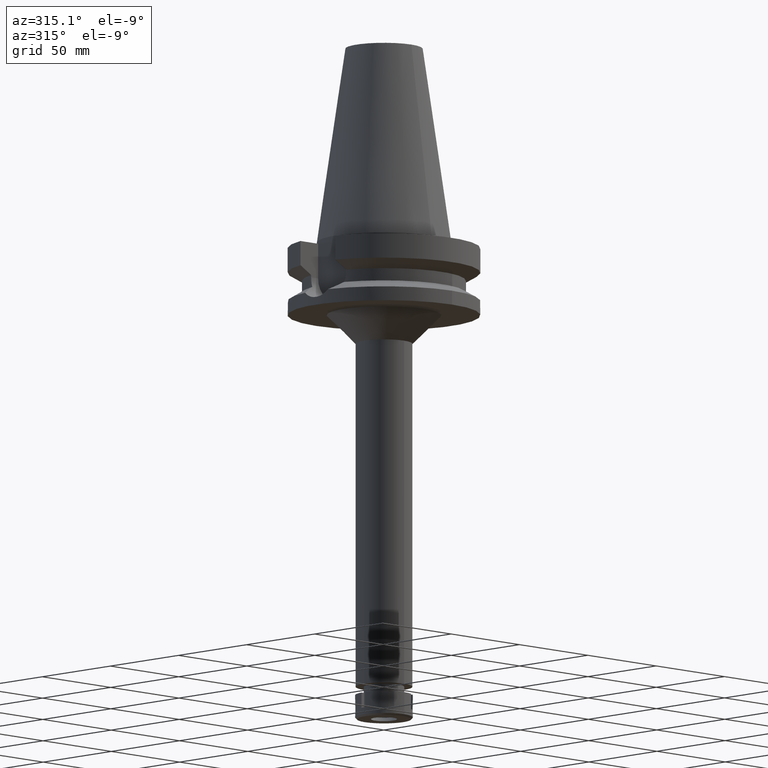
[diagram: clean part render]
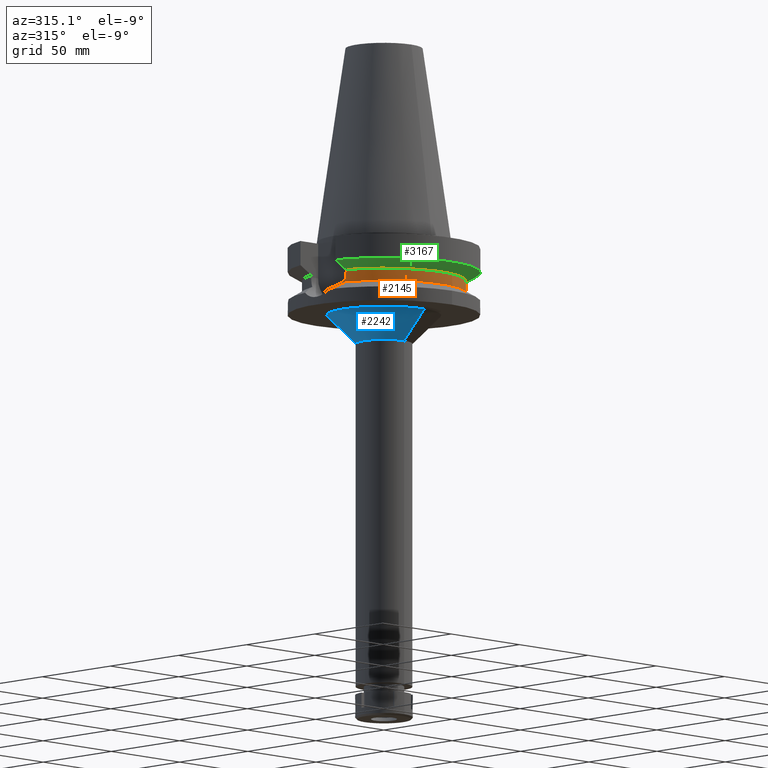
[diagram: same view with three faces highlighted in distinct colors, each labeled with its STEP entity id]
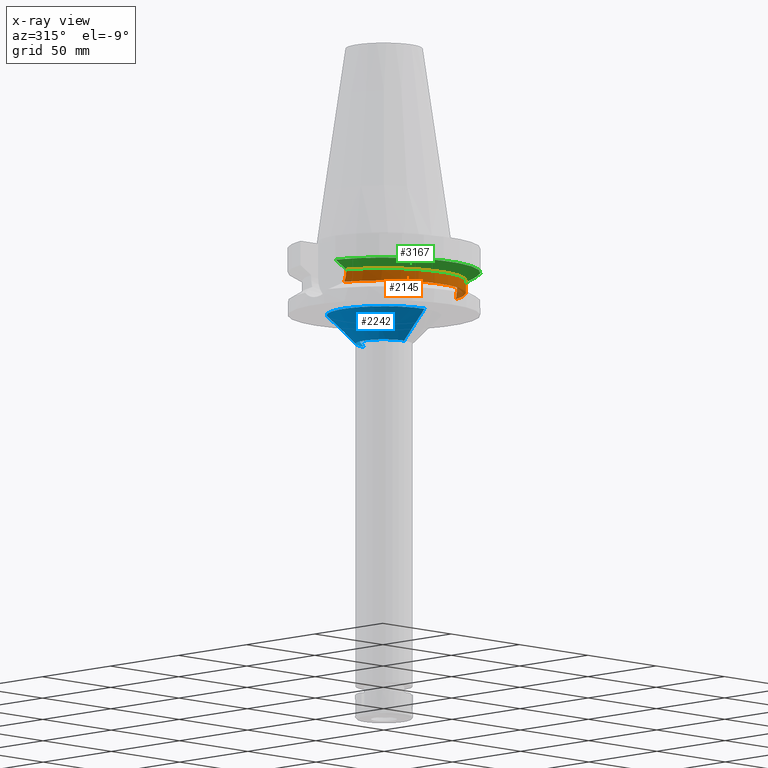
[diagram: x-ray of the same camera — body ghosted, the three highlighted faces saturated]
A machine part, auxiliary view with three faces highlighted in distinct colors.
The next image is the same camera in x-ray (body ghosted, the three faces saturated) — at least one of them is partly hidden behind the body in this view.
Their STEP definitions:

[orange] entity #2145 — the highlighted cylindrical surface (partial cylindrical patch) has radius 42.5 mm, axis along (0, 0, -1).
#53 = CARTESIAN_POINT ( 'NONE',  ( -40.51083188481999997, -12.84999999999999964, -21.14999999999999858 ) ) ;
#110 = CARTESIAN_POINT ( 'NONE',  ( -40.54024898815603706, -12.75863247753766494, -22.93144980652760978 ) ) ;
#166 = VERTEX_POINT ( 'NONE', #2362 ) ;
#270 = ORIENTED_EDGE ( 'NONE', *, *, #334, .F. ) ;
#334 = EDGE_CURVE ( 'NONE', #3294, #778, #1839, .T. ) ;
#392 = CARTESIAN_POINT ( 'NONE',  ( 40.73816480040193966, -12.11683925496016023, -25.53408892112326001 ) ) ;
#399 = CARTESIAN_POINT ( 'NONE',  ( -40.63719333504133857, -12.44501332045588171, -24.35254784870662803 ) ) ;
#444 = VECTOR ( 'NONE', #464, 1000.000000000000114 ) ;
#464 = DIRECTION ( 'NONE',  ( -9.390344966026790982E-07, -2.960396942958930431E-06, -0.9999999999951771912 ) ) ;
#612 = DIRECTION ( 'NONE',  ( 0.0000000000000000000, 0.0000000000000000000, -1.000000000000000000 ) ) ;
#629 = CARTESIAN_POINT ( 'NONE',  ( 40.85052569294000335, -11.72538061688000077, -26.40718074535000426 ) ) ;
#636 = CARTESIAN_POINT ( 'NONE',  ( -40.68244033203459509, -12.29668271514778155, -24.88704999020028552 ) ) ;
#763 = LINE ( 'NONE', #1869, #2227 ) ;
#778 = VERTEX_POINT ( 'NONE', #2733 ) ;
#784 = CARTESIAN_POINT ( 'NONE',  ( -40.85052569294000335, -11.72538061688000077, -26.40718074535000426 ) ) ;
#837 = CARTESIAN_POINT ( 'NONE',  ( -40.51083297203000200, -12.84999657244999938, -19.99284555869999735 ) ) ;
#874 = CARTESIAN_POINT ( 'NONE',  ( -40.85052569294000335, -11.72538061688000077, -26.40718074535000426 ) ) ;
#886 = CYLINDRICAL_SURFACE ( 'NONE', #2818, 42.50000000000000000 ) ;
#988 = EDGE_LOOP ( 'NONE', ( #2529, #1558, #270, #2837, #2279, #1402 ) ) ;
#1048 = AXIS2_PLACEMENT_3D ( 'NONE', #1614, #3334, #2490 ) ;
#1139 = CARTESIAN_POINT ( 'NONE',  ( -40.60613092892674558, -12.54580291205682840, -23.92957783935415961 ) ) ;
#1150 = CARTESIAN_POINT ( 'NONE',  ( 40.51818676736714053, -12.82722303781356032, -22.03685146693273822 ) ) ;
#1157 = CARTESIAN_POINT ( 'NONE',  ( -40.79434489636125960, -11.92111115639619534, -25.97063211114206638 ) ) ;
#1197 = CARTESIAN_POINT ( 'NONE',  ( -40.51083188481999997, -12.84999999999998543, -22.03306381036157902 ) ) ;
#1224 = CARTESIAN_POINT ( 'NONE',  ( 40.58662165106743913, -12.60879295188107818, -23.62921742826470606 ) ) ;
#1402 = ORIENTED_EDGE ( 'NONE', *, *, #2905, .F. ) ;
#1423 = CARTESIAN_POINT ( 'NONE',  ( 40.57495726702782690, -12.64634697063399749, -23.43364566692950390 ) ) ;
#1442 = CARTESIAN_POINT ( 'NONE',  ( 40.51083188482000708, -12.84999999999999964, -21.59153411739117345 ) ) ;
#1482 = CARTESIAN_POINT ( 'NONE',  ( 40.51083188481999997, -12.84999999999999964, -21.14999999999999858 ) ) ;
#1558 = ORIENTED_EDGE ( 'NONE', *, *, #1648, .F. ) ;
#1588 = EDGE_CURVE ( 'NONE', #1952, #166, #1699, .T. ) ;
#1614 = CARTESIAN_POINT ( 'NONE',  ( 0.0000000000000000000, 0.0000000000000000000, -26.40718074535000426 ) ) ;
#1648 = EDGE_CURVE ( 'NONE', #778, #166, #2431, .T. ) ;
#1699 = CIRCLE ( 'NONE', #1048, 42.50000000000000000 ) ;
#1715 = CARTESIAN_POINT ( 'NONE',  ( -40.74530095656257345, -12.08735962576008838, -25.53452175073027064 ) ) ;
#1726 = DIRECTION ( 'NONE',  ( 0.0000000000000000000, -1.000000000000000000, 0.0000000000000000000 ) ) ;
#1763 = CARTESIAN_POINT ( 'NONE',  ( -40.51083188481999997, -12.84999999999999964, -21.14999999999999858 ) ) ;
#1766 = CIRCLE ( 'NONE', #1932, 42.50000000000002132 ) ;
#1767 = CARTESIAN_POINT ( 'NONE',  ( -40.66327100472028633, -12.35978856920172042, -24.67232928655891300 ) ) ;
#1773 = DIRECTION ( 'NONE',  ( 0.9531960443486575674, -0.3023529411764863672, 0.0000000000000000000 ) ) ;
#1779 = CARTESIAN_POINT ( 'NONE',  ( 40.56599350392351511, -12.67510228031729369, -23.26591537261227316 ) ) ;
#1839 = LINE ( 'NONE', #2968, #444 ) ;
#1840 = VERTEX_POINT ( 'NONE', #837 ) ;
#1869 = CARTESIAN_POINT ( 'NONE',  ( -40.51083188481999997, -12.84999999999999964, -21.14999999999999858 ) ) ;
#1932 = AXIS2_PLACEMENT_3D ( 'NONE', #3418, #2018, #1773 ) ;
#1952 = VERTEX_POINT ( 'NONE', #784 ) ;
#1971 = CARTESIAN_POINT ( 'NONE',  ( 40.59187924288824689, -12.59183691188247423, -23.71299743614371991 ) ) ;
#1993 = CARTESIAN_POINT ( 'NONE',  ( 0.0000000000000000000, 2.682466348851999684E-14, 119.0400000000000063 ) ) ;
#2018 = DIRECTION ( 'NONE',  ( 0.0000000000000000000, 0.0000000000000000000, -1.000000000000000000 ) ) ;
#2047 = CARTESIAN_POINT ( 'NONE',  ( 40.54944501819246483, -12.72806949229347317, -22.93045211157004459 ) ) ;
#2145 = ADVANCED_FACE ( 'NONE', ( #2863 ), #886, .T. ) ;
#2227 = VECTOR ( 'NONE', #3001, 1000.000000000000000 ) ;
#2279 = ORIENTED_EDGE ( 'NONE', *, *, #2628, .F. ) ;
#2362 = CARTESIAN_POINT ( 'NONE',  ( 40.85052569294000335, -11.72538061688000077, -26.40718074535000426 ) ) ;
#2431 = B_SPLINE_CURVE_WITH_KNOTS ( 'NONE', 3,
 ( #1482, #1442, #1150, #2565, #2047, #1779, #1423, #1224, #1971, #3130, #3387, #2841, #392, #629 ),
 .UNSPECIFIED., .F., .F.,
 ( 4, 2, 2, 1, 1, 2, 2, 4 ),
 ( 0.0000000000000000000, 0.2500000000000140998, 0.3750000000000211497, 0.4375000000000236478, 0.4687500000000249245, 0.4843750000000254241, 0.5000000000000258682, 1.000000000000000000 ),
 .UNSPECIFIED. ) ;
#2438 = CARTESIAN_POINT ( 'NONE',  ( 40.51083188481999997, -12.84999999999999964, -19.99281925464999787 ) ) ;
#2472 = EDGE_CURVE ( 'NONE', #3294, #1840, #1766, .T. ) ;
#2490 = DIRECTION ( 'NONE',  ( -0.9611888398338002126, -0.2758913086325000541, 0.0000000000000000000 ) ) ;
#2529 = ORIENTED_EDGE ( 'NONE', *, *, #1588, .T. ) ;
#2565 = CARTESIAN_POINT ( 'NONE',  ( 40.54025141500855511, -12.75732202933684079, -22.70680722517304062 ) ) ;
#2593 = CARTESIAN_POINT ( 'NONE',  ( -40.61156309082138449, -12.52823235210636810, -24.00849456404459303 ) ) ;
#2628 = EDGE_CURVE ( 'NONE', #3488, #1840, #763, .T. ) ;
#2733 = CARTESIAN_POINT ( 'NONE',  ( 40.51083188481999997, -12.84999999999999964, -21.14999999999999858 ) ) ;
#2818 = AXIS2_PLACEMENT_3D ( 'NONE', #1993, #612, #1726 ) ;
#2837 = ORIENTED_EDGE ( 'NONE', *, *, #2472, .T. ) ;
#2841 = CARTESIAN_POINT ( 'NONE',  ( 40.65435306121712955, -12.39003696591579384, -24.66355730016733361 ) ) ;
#2863 = FACE_OUTER_BOUND ( 'NONE', #988, .T. ) ;
#2905 = EDGE_CURVE ( 'NONE', #1952, #3488, #3031, .T. ) ;
#2908 = CARTESIAN_POINT ( 'NONE',  ( -40.62482358052496778, -12.48526759179720713, -24.19323090757233530 ) ) ;
#2968 = CARTESIAN_POINT ( 'NONE',  ( 40.51083297143000550, -12.84999657435999865, -19.99284554403000058 ) ) ;
#3001 = DIRECTION ( 'NONE',  ( -9.395584592292728125E-07, 2.962048808702914309E-06, 0.9999999999951717511 ) ) ;
#3031 = B_SPLINE_CURVE_WITH_KNOTS ( 'NONE', 3,
 ( #874, #1157, #1715, #636, #1767, #399, #2908, #2593, #1139, #3416, #3179, #110, #1197, #53 ),
 .UNSPECIFIED., .F., .F.,
 ( 4, 2, 2, 1, 1, 2, 2, 4 ),
 ( 0.0000000000000000000, 0.2500000000000062728, 0.3750000000000088263, 0.4375000000000092149, 0.4687500000000093259, 0.4843750000000085487, 0.5000000000000077716, 1.000000000000000000 ),
 .UNSPECIFIED. ) ;
#3130 = CARTESIAN_POINT ( 'NONE',  ( 40.59544176412200756, -12.58034112467462506, -23.76884132011575446 ) ) ;
#3179 = CARTESIAN_POINT ( 'NONE',  ( -40.60092176378661577, -12.56264182350519754, -23.85247009956342268 ) ) ;
#3294 = VERTEX_POINT ( 'NONE', #2438 ) ;
#3334 = DIRECTION ( 'NONE',  ( 0.0000000000000000000, 0.0000000000000000000, 1.000000000000000000 ) ) ;
#3387 = CARTESIAN_POINT ( 'NONE',  ( 40.59736351957839418, -12.57413630430450802, -23.79845512724742207 ) ) ;
#3416 = CARTESIAN_POINT ( 'NONE',  ( -40.60256524435725112, -12.55733085646615343, -23.87702501536848132 ) ) ;
#3418 = CARTESIAN_POINT ( 'NONE',  ( 0.0000000000000000000, 1.006319759053999930E-14, -19.99281925464999787 ) ) ;
#3488 = VERTEX_POINT ( 'NONE', #1763 ) ;

[blue] entity #2242 — the highlighted conical surface has half-angle 45 deg.
#148 = CARTESIAN_POINT ( 'NONE',  ( 0.0000000000000000000, -29.75000000000000000, -38.00000000000000000 ) ) ;
#231 = CARTESIAN_POINT ( 'NONE',  ( 0.0000000000000000000, -29.75000000000000000, -38.00000000000000000 ) ) ;
#271 = VECTOR ( 'NONE', #1944, 1000.000000000000114 ) ;
#380 = EDGE_CURVE ( 'NONE', #693, #2574, #2551, .T. ) ;
#485 = AXIS2_PLACEMENT_3D ( 'NONE', #544, #1884, #2787 ) ;
#521 = ORIENTED_EDGE ( 'NONE', *, *, #380, .T. ) ;
#544 = CARTESIAN_POINT ( 'NONE',  ( 0.0000000000000000000, 0.0000000000000000000, -53.00000000000000000 ) ) ;
#572 = EDGE_CURVE ( 'NONE', #761, #3188, #2610, .T. ) ;
#659 = EDGE_LOOP ( 'NONE', ( #1390, #1021, #1378, #521 ) ) ;
#693 = VERTEX_POINT ( 'NONE', #3505 ) ;
#761 = VERTEX_POINT ( 'NONE', #231 ) ;
#770 = CARTESIAN_POINT ( 'NONE',  ( 0.0000000000000000000, 0.0000000000000000000, -45.50000000000000000 ) ) ;
#960 = FACE_OUTER_BOUND ( 'NONE', #659, .T. ) ;
#973 = DIRECTION ( 'NONE',  ( 0.0000000000000000000, 0.0000000000000000000, 1.000000000000000000 ) ) ;
#1021 = ORIENTED_EDGE ( 'NONE', *, *, #572, .F. ) ;
#1378 = ORIENTED_EDGE ( 'NONE', *, *, #2708, .T. ) ;
#1390 = ORIENTED_EDGE ( 'NONE', *, *, #1919, .F. ) ;
#1404 = AXIS2_PLACEMENT_3D ( 'NONE', #770, #973, #3547 ) ;
#1649 = AXIS2_PLACEMENT_3D ( 'NONE', #2497, #2219, #3342 ) ;
#1819 = CONICAL_SURFACE ( 'NONE', #1404, 22.25000000000000000, 0.7853981633972997312 ) ;
#1884 = DIRECTION ( 'NONE',  ( 0.0000000000000000000, 0.0000000000000000000, -1.000000000000000000 ) ) ;
#1919 = EDGE_CURVE ( 'NONE', #3188, #2574, #2581, .T. ) ;
#1944 = DIRECTION ( 'NONE',  ( 0.0000000000000000000, -0.7071067811865474617, -0.7071067811865474617 ) ) ;
#2166 = CIRCLE ( 'NONE', #1649, 29.75000000000000000 ) ;
#2219 = DIRECTION ( 'NONE',  ( 0.0000000000000000000, 0.0000000000000000000, -1.000000000000000000 ) ) ;
#2220 = CARTESIAN_POINT ( 'NONE',  ( 0.0000000000000000000, 29.75000000000000000, -38.00000000000000000 ) ) ;
#2242 = ADVANCED_FACE ( 'NONE', ( #960 ), #1819, .T. ) ;
#2273 = VECTOR ( 'NONE', #2573, 1000.000000000000114 ) ;
#2497 = CARTESIAN_POINT ( 'NONE',  ( 0.0000000000000000000, 0.0000000000000000000, -38.00000000000000000 ) ) ;
#2551 = LINE ( 'NONE', #2220, #271 ) ;
#2573 = DIRECTION ( 'NONE',  ( 0.0000000000000000000, 0.7071067811865474617, -0.7071067811865474617 ) ) ;
#2574 = VERTEX_POINT ( 'NONE', #2682 ) ;
#2581 = CIRCLE ( 'NONE', #485, 14.75000000000000000 ) ;
#2610 = LINE ( 'NONE', #148, #2273 ) ;
#2682 = CARTESIAN_POINT ( 'NONE',  ( 0.0000000000000000000, 14.75000000000000000, -53.00000000000000000 ) ) ;
#2708 = EDGE_CURVE ( 'NONE', #761, #693, #2166, .T. ) ;
#2787 = DIRECTION ( 'NONE',  ( 0.0000000000000000000, -1.000000000000000000, 0.0000000000000000000 ) ) ;
#2979 = CARTESIAN_POINT ( 'NONE',  ( 0.0000000000000000000, -14.75000000000000000, -53.00000000000000000 ) ) ;
#3188 = VERTEX_POINT ( 'NONE', #2979 ) ;
#3342 = DIRECTION ( 'NONE',  ( 0.0000000000000000000, -1.000000000000000000, 0.0000000000000000000 ) ) ;
#3505 = CARTESIAN_POINT ( 'NONE',  ( 0.0000000000000000000, 29.75000000000000000, -38.00000000000000000 ) ) ;
#3547 = DIRECTION ( 'NONE',  ( 0.0000000000000000000, 1.000000000000000000, 0.0000000000000000000 ) ) ;

[green] entity #3167 — the highlighted conical surface has half-angle 60 deg.
#143 = DIRECTION ( 'NONE',  ( 0.0000000000000000000, -1.000000000000000000, 0.0000000000000000000 ) ) ;
#202 = CARTESIAN_POINT ( 'NONE',  ( 0.0000000000000000000, 1.006319759053999930E-14, -17.82775574519000017 ) ) ;
#245 = CARTESIAN_POINT ( 'NONE',  ( 40.51083188481999997, -12.84999999999999964, -19.99281925464999787 ) ) ;
#299 = CARTESIAN_POINT ( 'NONE',  ( 42.90863232016216244, -12.84999314232176104, -18.67324368506743326 ) ) ;
#357 = B_SPLINE_CURVE_WITH_KNOTS ( 'NONE', 3,
 ( #2865, #2591, #3429, #1429 ),
 .UNSPECIFIED., .F., .F.,
 ( 4, 4 ),
 ( 0.0000000000000000000, 1.000000000000000000 ),
 .UNSPECIFIED. ) ;
#816 = CARTESIAN_POINT ( 'NONE',  ( 48.32056912779999891, -12.85000385857999916, -15.66265767091000072 ) ) ;
#837 = CARTESIAN_POINT ( 'NONE',  ( -40.51083297203000200, -12.84999657244999938, -19.99284555869999735 ) ) ;
#941 = AXIS2_PLACEMENT_3D ( 'NONE', #2548, #1468, #143 ) ;
#1062 = CARTESIAN_POINT ( 'NONE',  ( 48.32056912779999891, -12.85000385857999916, -15.66265767091000072 ) ) ;
#1118 = EDGE_CURVE ( 'NONE', #1653, #3301, #3394, .T. ) ;
#1169 = EDGE_CURVE ( 'NONE', #1653, #1840, #357, .T. ) ;
#1282 = DIRECTION ( 'NONE',  ( 0.0000000000000000000, 0.0000000000000000000, 1.000000000000000000 ) ) ;
#1429 = CARTESIAN_POINT ( 'NONE',  ( -40.51083297203000200, -12.84999657244999938, -19.99284555869999735 ) ) ;
#1468 = DIRECTION ( 'NONE',  ( 0.0000000000000000000, 0.0000000000000000000, 1.000000000000000000 ) ) ;
#1650 = CONICAL_SURFACE ( 'NONE', #3521, 46.25000000000000000, 1.047197551196400456 ) ;
#1653 = VERTEX_POINT ( 'NONE', #2901 ) ;
#1766 = CIRCLE ( 'NONE', #1932, 42.50000000000002132 ) ;
#1773 = DIRECTION ( 'NONE',  ( 0.9531960443486575674, -0.3023529411764863672, 0.0000000000000000000 ) ) ;
#1833 = FACE_OUTER_BOUND ( 'NONE', #3105, .T. ) ;
#1840 = VERTEX_POINT ( 'NONE', #837 ) ;
#1904 = EDGE_CURVE ( 'NONE', #3294, #3301, #2205, .T. ) ;
#1932 = AXIS2_PLACEMENT_3D ( 'NONE', #3418, #2018, #1773 ) ;
#2018 = DIRECTION ( 'NONE',  ( 0.0000000000000000000, 0.0000000000000000000, -1.000000000000000000 ) ) ;
#2126 = DIRECTION ( 'NONE',  ( 0.0000000000000000000, 1.000000000000000000, 0.0000000000000000000 ) ) ;
#2205 = B_SPLINE_CURVE_WITH_KNOTS ( 'NONE', 3,
 ( #245, #299, #2533, #816 ),
 .UNSPECIFIED., .F., .F.,
 ( 4, 4 ),
 ( 0.0000000000000000000, 1.000000000000000000 ),
 .UNSPECIFIED. ) ;
#2438 = CARTESIAN_POINT ( 'NONE',  ( 40.51083188481999997, -12.84999999999999964, -19.99281925464999787 ) ) ;
#2472 = EDGE_CURVE ( 'NONE', #3294, #1840, #1766, .T. ) ;
#2533 = CARTESIAN_POINT ( 'NONE',  ( 45.51180301818635598, -12.85000771250647134, -17.22986482497763561 ) ) ;
#2548 = CARTESIAN_POINT ( 'NONE',  ( 0.0000000000000000000, 1.006319759053999930E-14, -15.66269223573000069 ) ) ;
#2591 = CARTESIAN_POINT ( 'NONE',  ( -45.51179901536024630, -12.85000770991706176, -17.22986705878139446 ) ) ;
#2618 = ORIENTED_EDGE ( 'NONE', *, *, #2472, .F. ) ;
#2674 = ORIENTED_EDGE ( 'NONE', *, *, #1118, .F. ) ;
#2865 = CARTESIAN_POINT ( 'NONE',  ( -48.32056912814000071, -12.85000385727999905, -15.66265768250999990 ) ) ;
#2901 = CARTESIAN_POINT ( 'NONE',  ( -48.32056912814000071, -12.85000385727999905, -15.66265768250999990 ) ) ;
#2971 = ORIENTED_EDGE ( 'NONE', *, *, #1904, .T. ) ;
#3105 = EDGE_LOOP ( 'NONE', ( #3183, #2618, #2971, #2674 ) ) ;
#3167 = ADVANCED_FACE ( 'NONE', ( #1833 ), #1650, .T. ) ;
#3183 = ORIENTED_EDGE ( 'NONE', *, *, #1169, .T. ) ;
#3294 = VERTEX_POINT ( 'NONE', #2438 ) ;
#3301 = VERTEX_POINT ( 'NONE', #1062 ) ;
#3394 = CIRCLE ( 'NONE', #941, 50.00000000000000000 ) ;
#3418 = CARTESIAN_POINT ( 'NONE',  ( 0.0000000000000000000, 1.006319759053999930E-14, -19.99281925464999787 ) ) ;
#3429 = CARTESIAN_POINT ( 'NONE',  ( -42.90862489405132152, -12.84999313793018416, -18.67324780319469113 ) ) ;
#3521 = AXIS2_PLACEMENT_3D ( 'NONE', #202, #1282, #2126 ) ;